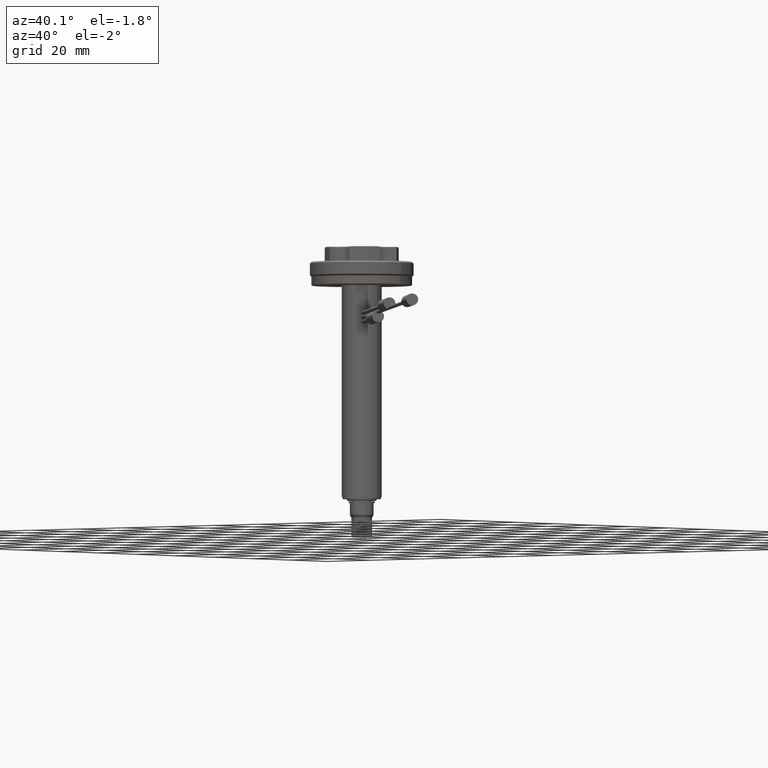
[diagram: clean part render]
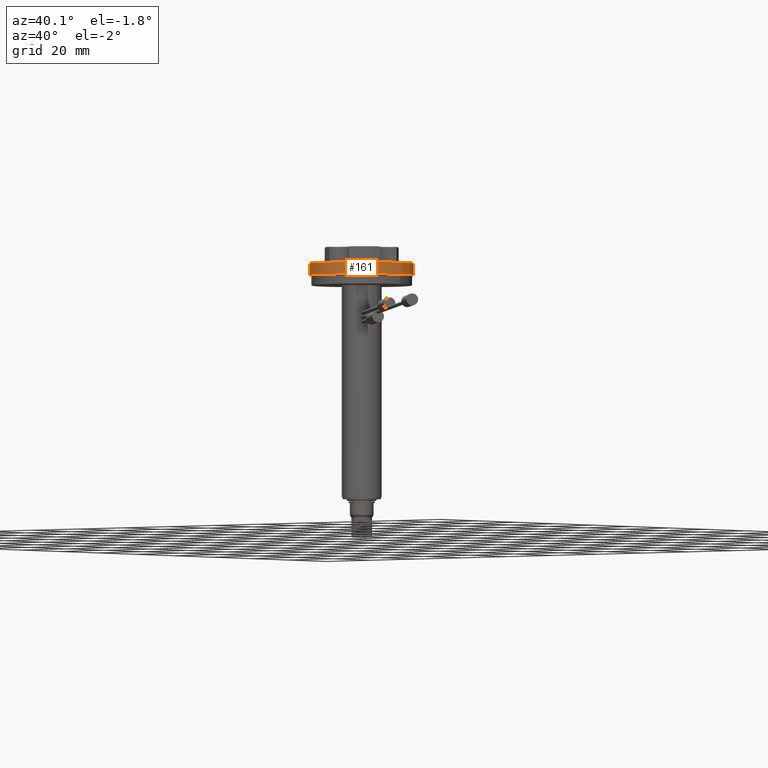
[diagram: same view with one face highlighted and labeled with its STEP entity id]
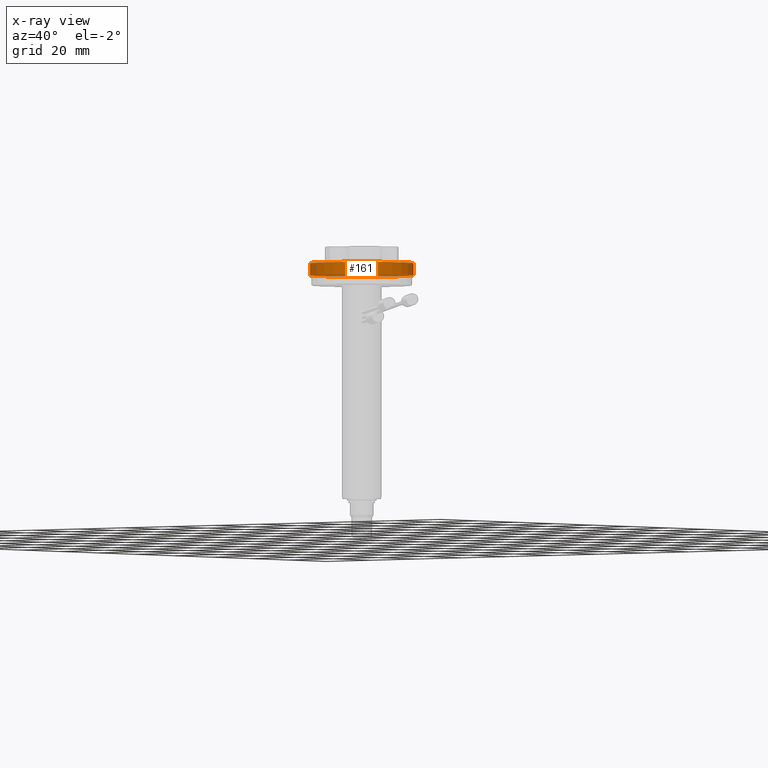
[diagram: x-ray of the same camera — body ghosted, the highlighted face saturated]
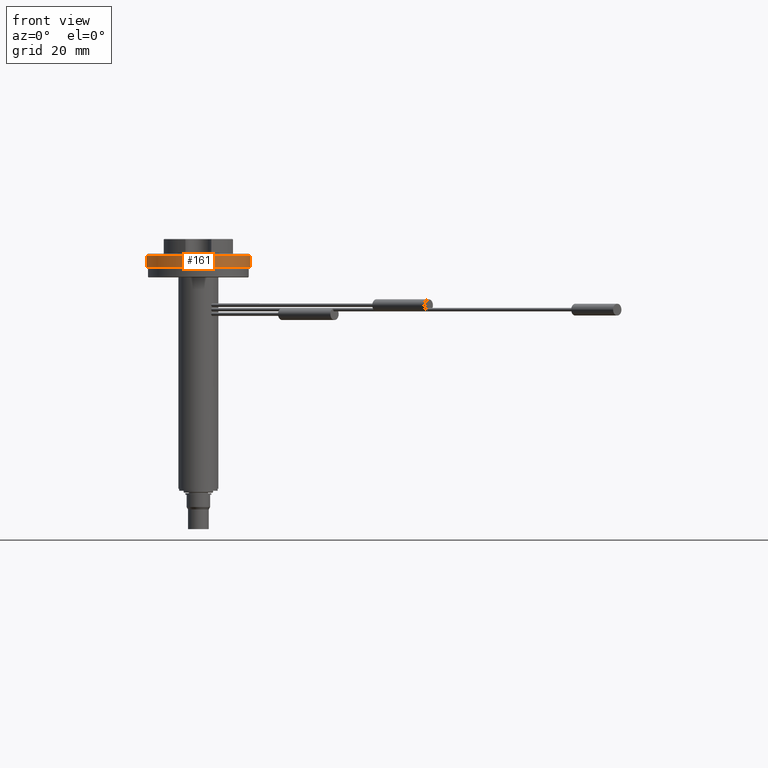
[diagram: same view with one face highlighted and labeled with its STEP entity id]
A machine part, auxiliary view. The second image highlights one B-rep face of the part: STEP entity #161.
The next image is the same camera in x-ray: the body ghosted, the highlighted face saturated — about 15% of this face is hidden behind the body in this view.
A second angle (front view) of the same face is appended — the face is thin or edge-on in the first view.
In plain terms, the highlighted cylindrical surface (bore or boss wall) has radius 17.5 mm, axis along (0, 0, 1).
Its self-contained STEP definition (entity closure, byte-faithful):
#161=ADVANCED_FACE('',(#382,#383),#220,.T.);
#220=CYLINDRICAL_SURFACE('',#1132,17.5);
#263=CIRCLE('',#1101,17.5);
#285=CIRCLE('',#1131,17.5);
#382=FACE_BOUND('',#519,.T.);
#383=FACE_BOUND('',#520,.T.);
#519=EDGE_LOOP('',(#699));
#520=EDGE_LOOP('',(#700));
#699=ORIENTED_EDGE('',*,*,#986,.T.);
#700=ORIENTED_EDGE('',*,*,#954,.T.);
#861=VERTEX_POINT('',#1833);
#887=VERTEX_POINT('',#1905);
#954=EDGE_CURVE('',#861,#861,#263,.T.);
#986=EDGE_CURVE('',#887,#887,#285,.T.);
#1101=AXIS2_PLACEMENT_3D('',#1832,#1329,#1330);
#1131=AXIS2_PLACEMENT_3D('',#1904,#1397,#1398);
#1132=AXIS2_PLACEMENT_3D('',#1906,#1399,#1400);
#1329=DIRECTION('',(0.,0.,-1.));
#1330=DIRECTION('',(1.,0.,0.));
#1397=DIRECTION('',(0.,0.,1.));
#1398=DIRECTION('',(-1.,0.,0.));
#1399=DIRECTION('',(0.,0.,1.));
#1400=DIRECTION('',(1.,0.,0.));
#1832=CARTESIAN_POINT('',(0.,0.,-5.49999999999997));
#1833=CARTESIAN_POINT('',(17.5,0.,-5.49999999999997));
#1904=CARTESIAN_POINT('',(0.,0.,-9.49999999999997));
#1905=CARTESIAN_POINT('',(-17.5,0.,-9.49999999999997));
#1906=CARTESIAN_POINT('',(0.,0.,0.));